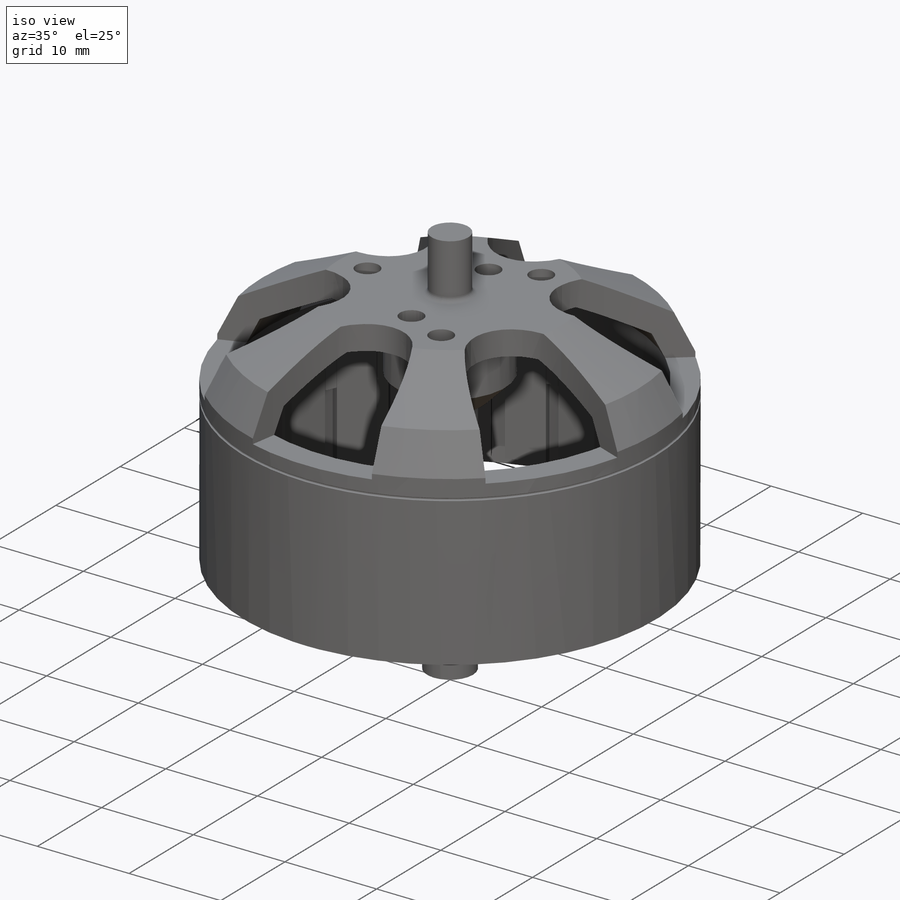
[diagram: iso view]
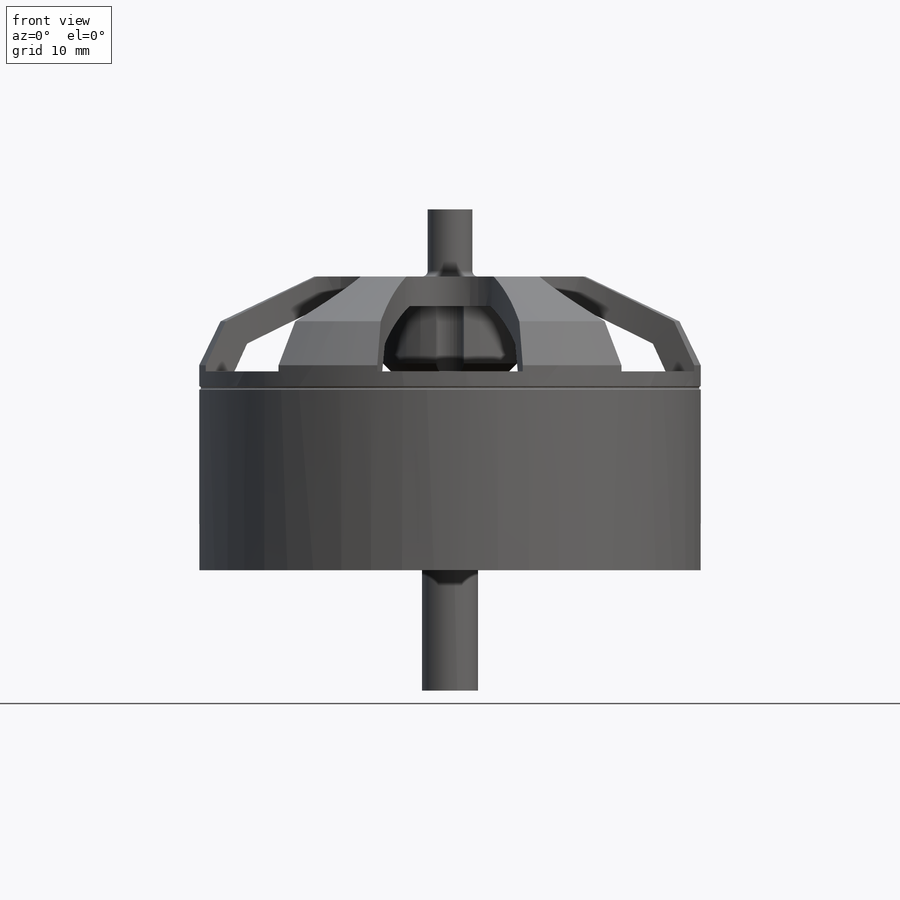
[diagram: front view]
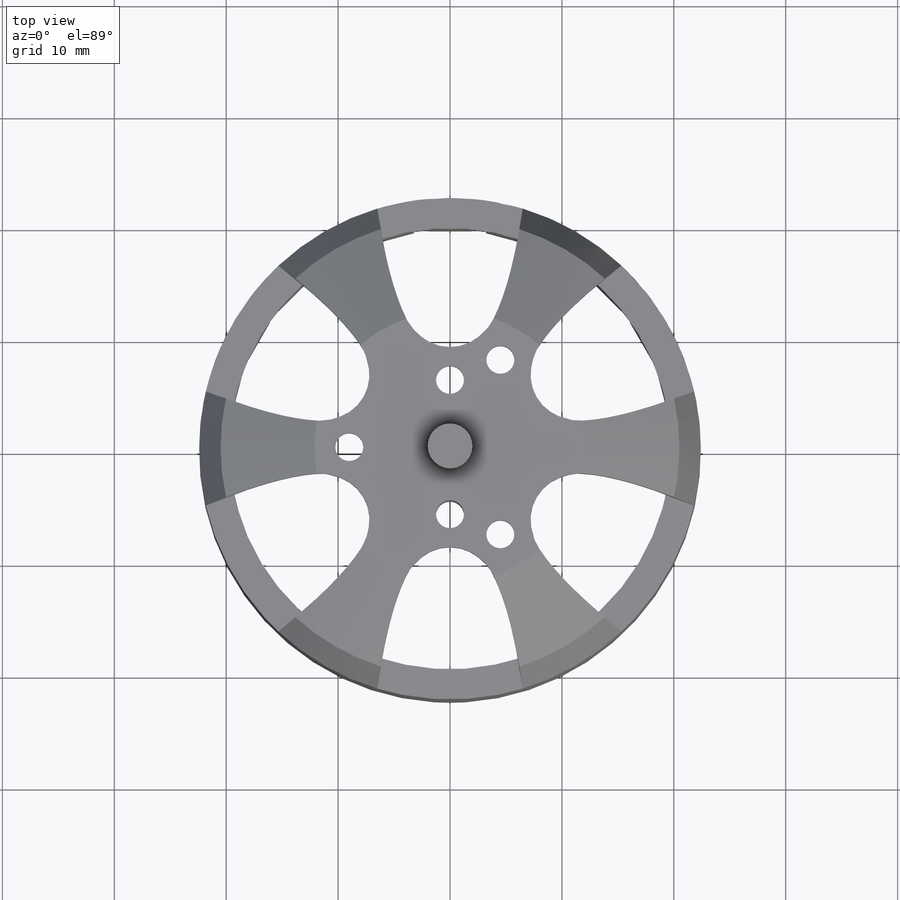
[diagram: top view]
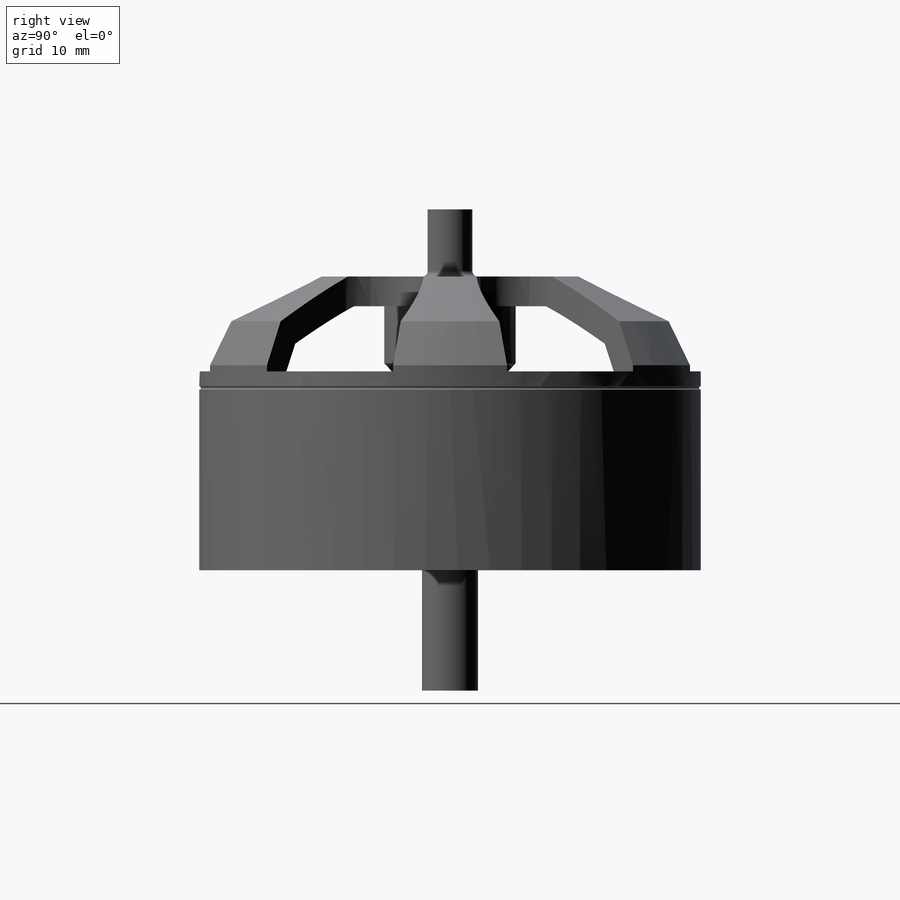
[diagram: right view]
SOLIDWORKS PART (.sldprt)
format: sldprt  version: not decoded by parser v0  size: 678,912 bytes
history: native  units: mm
features: sketch x11, extrude x5, cut_extrude x4, cut_revolve x2, pattern_circular x2, material x1, shell x1, chamfer x1, fillet x1 (+13 scaffold rows collapsed)
feature tree (41):
  scaffold x13  (default folders/planes/origin — collapsed)
  material  "Material <not specified>"
  sketch  "Sketch1"  dims[D1=44.82mm]
  extrude  "Boss-Extrude1"  Depth=26.25mm
  sketch  "Sketch2"  dims[D1=12.125mm D2=20.5mm D3=4.0mm]
  cut_revolve  "Cut-Revolve1"  Angle=360deg
  sketch  "Sketch3"  dims[D1=4.0mm]
  extrude  "Boss-Extrude2"  Depth=6mm
  shell  "Shell3"  Thickness=2.66mm
  sketch  "Sketch9"  dims[D1=12.0mm]
  extrude  "Boss-Extrude3"  Depth=7.6mm
  sketch  "Sketch10"  dims[D1=5.0mm]
  extrude  "Boss-Extrude4"  Depth=43mm
  chamfer  "Chamfer1"  Distance=2.5mm Angle=45deg
  sketch  "Sketch7"  dims[c1.D1=8.0mm c1.D2=7.0mm c1.D3=3.9mm c2.D2=6.5mm c2.D4=12.935mm c2.D5=6.1mm c2.D6=6.0]
  cut_extrude  "Cut-Extrude3"  Depth=17.78mm
  sketch  "Sketch8"  dims[D1=2.5mm D4=2.5mm D2=9.0mm D5=6.0mm]
  cut_extrude  "Cut-Extrude4"  Depth=17.78mm
  fillet  "Fillet2"  Radius=0.5mm
  sketch  "Sketch11"  dims[D2=0.3mm D1=16.3mm]
  cut_revolve  "Cut-Revolve3"  Angle=360deg
  sketch  "Sketch12"  dims[D1=41.72mm]
  cut_extrude  "Cut-Extrude5"  Depth=9mm
  sketch  "Sketch13"  dims[D1=4.0mm D2=1.0mm]
  cut_extrude  "Cut-Extrude6"  Depth=3.42mm
  pattern_circular  "CirPattern1"  Count=24 Angle=15deg
  sketch  "Sketch14"  dims[D1=0.05mm]
  extrude  "Boss-Extrude5"  Depth=1mm
  pattern_circular  "CirPattern2"  Count=24 Angle=15deg
decode coverage: 27 of 27 modeling features carry decoded parameters
note: suppression state not decoded; provenance and decode notes live in map.json
